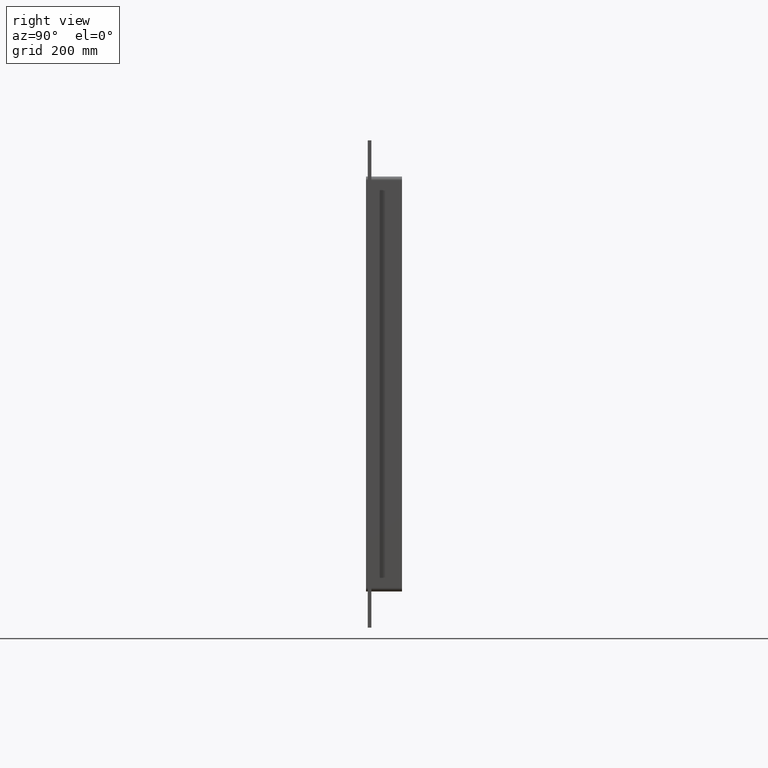
[diagram: clean part render]
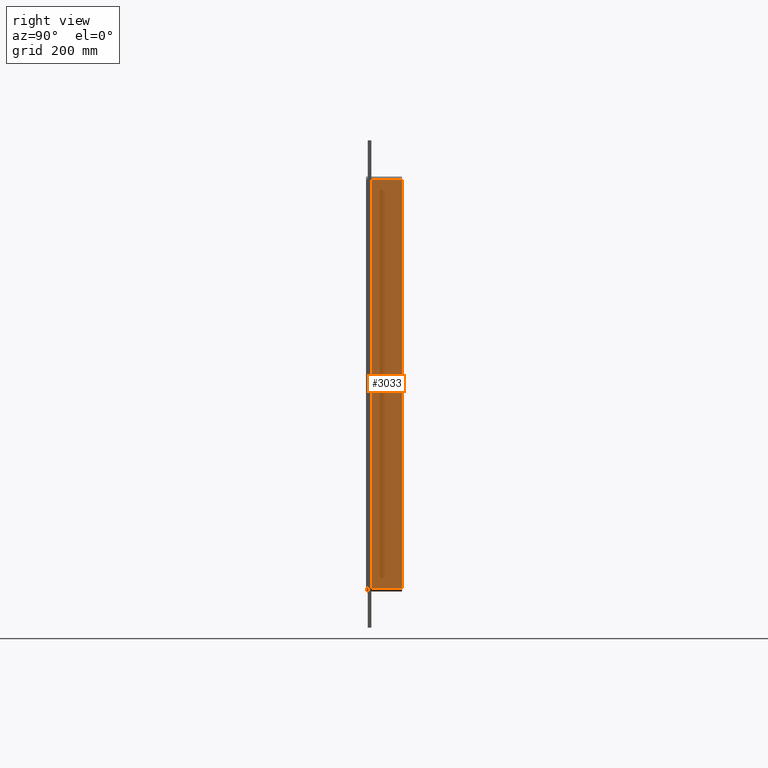
[diagram: same view with one face highlighted and labeled with its STEP entity id]
A machine part, right view. The second image highlights one B-rep face of the part: STEP entity #3033.
In plain terms, the highlighted planar face has unit normal (1, 0, 0).
Its self-contained STEP definition (entity closure, byte-faithful):
#989=CARTESIAN_POINT('',(392.50000000000011,57.0,-339.0));
#990=VERTEX_POINT('',#989);
#1040=CARTESIAN_POINT('',(392.50000000000011,57.0,339.00000000000006));
#1041=VERTEX_POINT('',#1040);
#1049=CARTESIAN_POINT('',(392.50000000000011,57.0,339.00000000000006));
#1050=DIRECTION('',(0.0,0.0,-1.0));
#1051=VECTOR('',#1050,678.0);
#1052=LINE('',#1049,#1051);
#1053=EDGE_CURVE('',#1041,#990,#1052,.T.);
#2714=CARTESIAN_POINT('',(392.50000000000011,6.000000000000001,-339.00000000000006));
#2715=VERTEX_POINT('',#2714);
#2723=CARTESIAN_POINT('',(392.50000000000011,6.000000000000001,339.00000000000006));
#2724=VERTEX_POINT('',#2723);
#2725=CARTESIAN_POINT('',(392.50000000000011,6.000000000000001,339.00000000000006));
#2726=DIRECTION('',(0.0,0.0,-1.0));
#2727=VECTOR('',#2726,678.0);
#2728=LINE('',#2725,#2727);
#2729=EDGE_CURVE('',#2724,#2715,#2728,.T.);
#2984=CARTESIAN_POINT('',(392.50000000000011,6.000000000000001,339.00000000000006));
#2985=DIRECTION('',(0.0,1.0,0.0));
#2986=VECTOR('',#2985,51.0);
#2987=LINE('',#2984,#2986);
#2988=EDGE_CURVE('',#2724,#1041,#2987,.T.);
#3017=CARTESIAN_POINT('',(392.50000000000011,0.0,345.00000000000006));
#3018=DIRECTION('',(1.0,0.0,0.0));
#3019=DIRECTION('',(0.0,0.0,-1.0));
#3020=AXIS2_PLACEMENT_3D('',#3017,#3018,#3019);
#3021=PLANE('',#3020);
#3022=ORIENTED_EDGE('',*,*,#2729,.T.);
#3023=CARTESIAN_POINT('',(392.50000000000011,57.0,-339.00000000000006));
#3024=DIRECTION('',(0.0,-1.0,0.0));
#3025=VECTOR('',#3024,51.0);
#3026=LINE('',#3023,#3025);
#3027=EDGE_CURVE('',#990,#2715,#3026,.T.);
#3028=ORIENTED_EDGE('',*,*,#3027,.F.);
#3029=ORIENTED_EDGE('',*,*,#1053,.F.);
#3030=ORIENTED_EDGE('',*,*,#2988,.F.);
#3031=EDGE_LOOP('',(#3022,#3028,#3029,#3030));
#3032=FACE_OUTER_BOUND('',#3031,.T.);
#3033=ADVANCED_FACE('',(#3032),#3021,.T.);